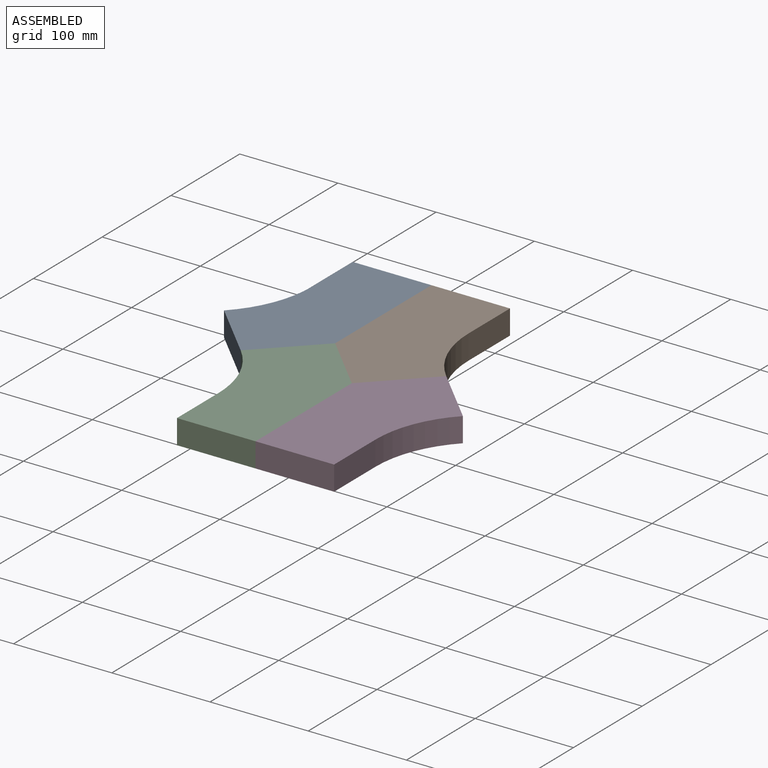
[diagram: assembled view]
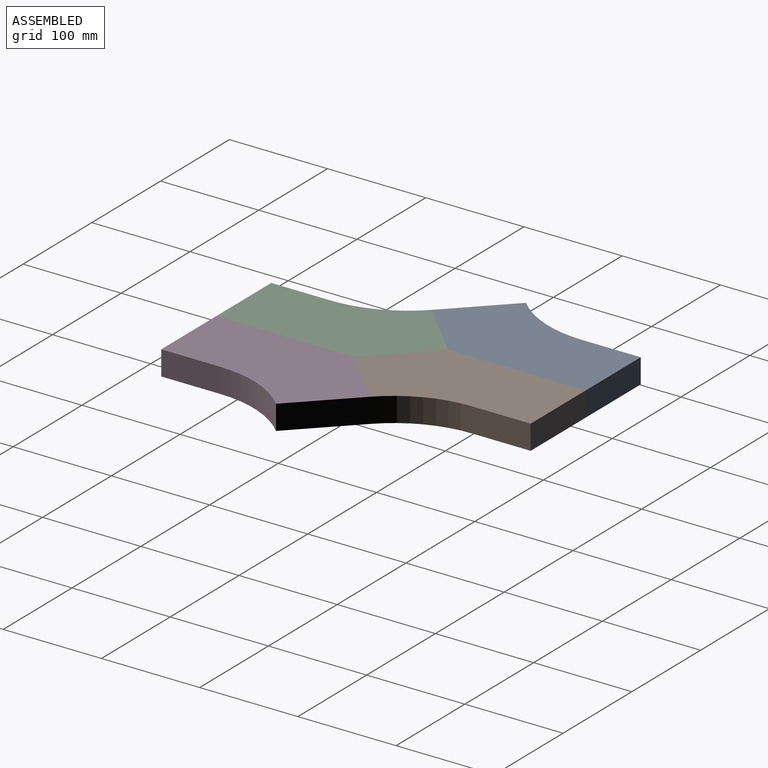
[diagram: assembled view, second angle]
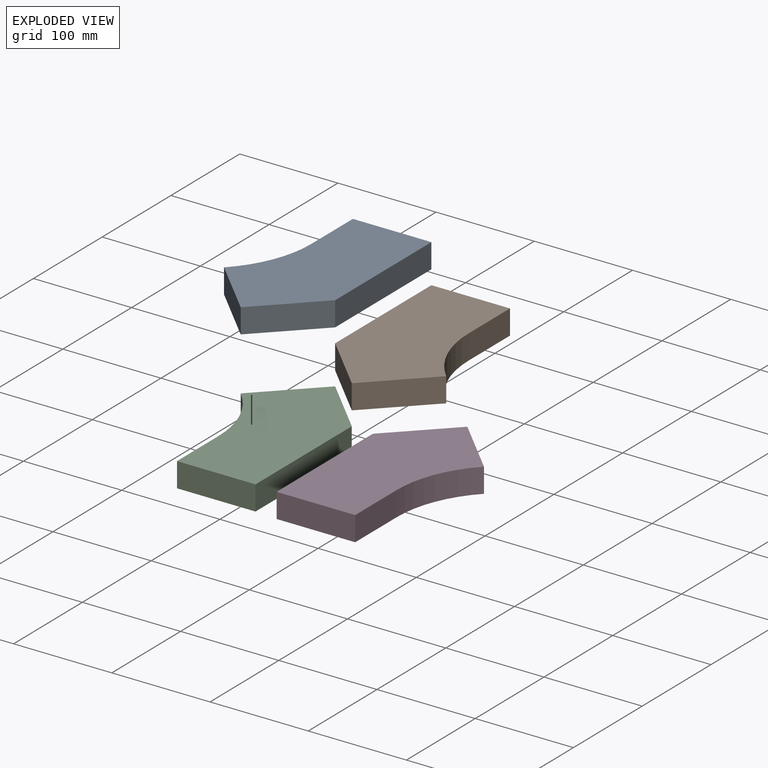
[diagram: exploded view]
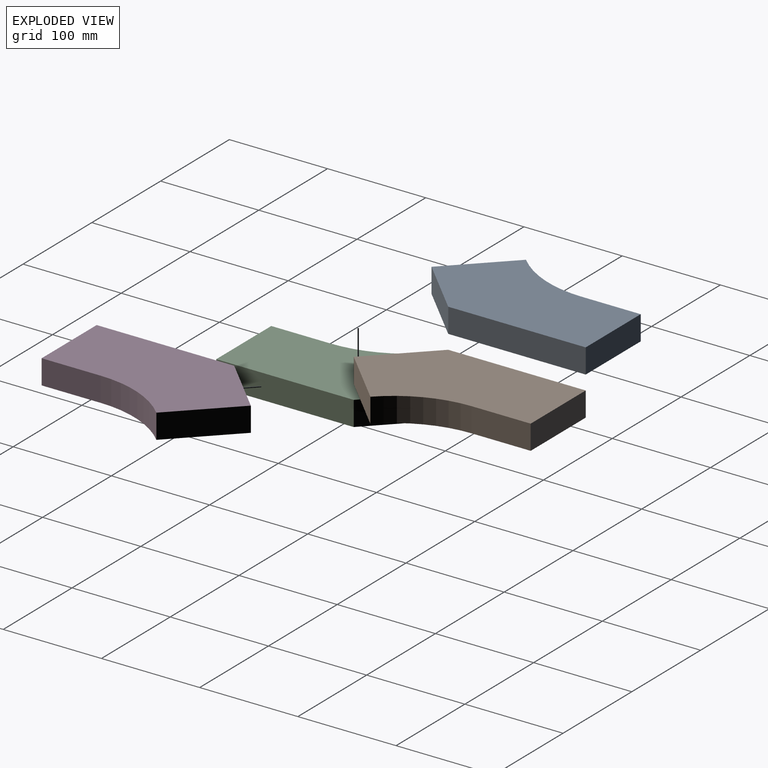
[diagram: exploded view, second angle]
ASSEMBLY  parts=4 mates=6
PART A: 8 faces, bbox 196.6x113.1x25 mm
  f0: plane 56.57x56.57mm, normal (0.71,-0.71,0), area 2000mm2, adj f1,f5,f6,f7
  f1: plane 56.57x56.57mm, normal (0.71,0.71,0), area 2000mm2, adj f0,f2,f6,f7
  f2: plane 140x25mm, normal (0,1,0), area 3500mm2, adj f1,f3,f6,f7
  f3: plane 80x25mm, normal (-1,0,0), area 2000mm2, adj f2,f4,f6,f7
  f4: plane 60x25mm, normal (0,-1,0), area 1500mm2, adj f3,f5,f6,f7
  f5: cylinder r=113.14mm len=80mm, axis (0,0,-1), area 2221.4mm2, adj f0,f4,f6,f7
  f6: plane 196.57x113.14mm, normal (0,0,1), area 15224.4mm2, adj f0,f1,f2,f3,f4,f5
  f7: plane 196.57x113.14mm, normal (0,0,-1), area 15224.4mm2, adj f0,f1,f2,f3,f4,f5
PART B: same geometry as A
PART C: same geometry as A
PART D: same geometry as A
PLACE A rot(axis=(0,0,-1),90deg) t=(-173.19,134.79,63.26)mm
PLACE B rot(axis=(-0.71,0.71,0),180deg) t=(-60.05,134.79,88.26)mm fixed
PLACE C rot(axis=(-0.71,-0.71,0),180deg) t=(-116.62,191.36,88.26)mm
PLACE D rot(axis=(0,0,1),90deg) t=(-3.49,191.36,63.26)mm
MATE parallel C.f6 <-> B.f6  axis (0,0,-1) through (-106.22,86.21,63.26)mm
MATE fastened B.f1 <-> C.f1  axis (-0.71,-0.71,0) through (-88.34,163.07,75.76)mm
MATE fastened D.f1 <-> B.f0  axis (-0.71,0.71,0) through (-31.77,163.07,75.76)mm
MATE fastened C.f0 <-> A.f1  axis (-0.71,0.71,0) through (-144.91,163.07,75.76)mm
MATE parallel B.f6 <-> D.f7  axis (0,0,-1) through (-70.45,239.94,63.26)mm
MATE parallel A.f7 <-> B.f6  axis (0,0,-1) through (-162.79,239.94,63.26)mm
